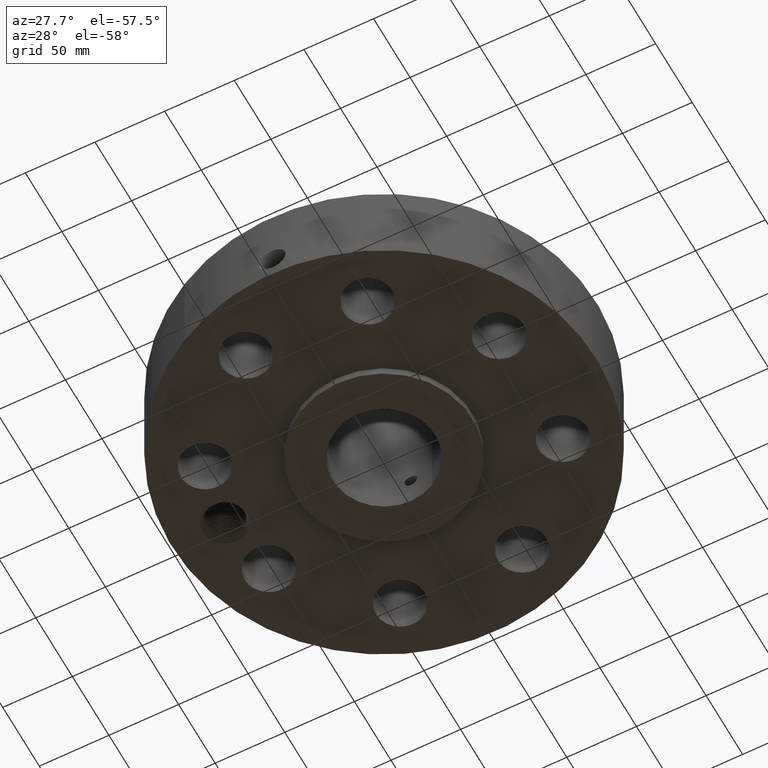
[diagram: clean part render]
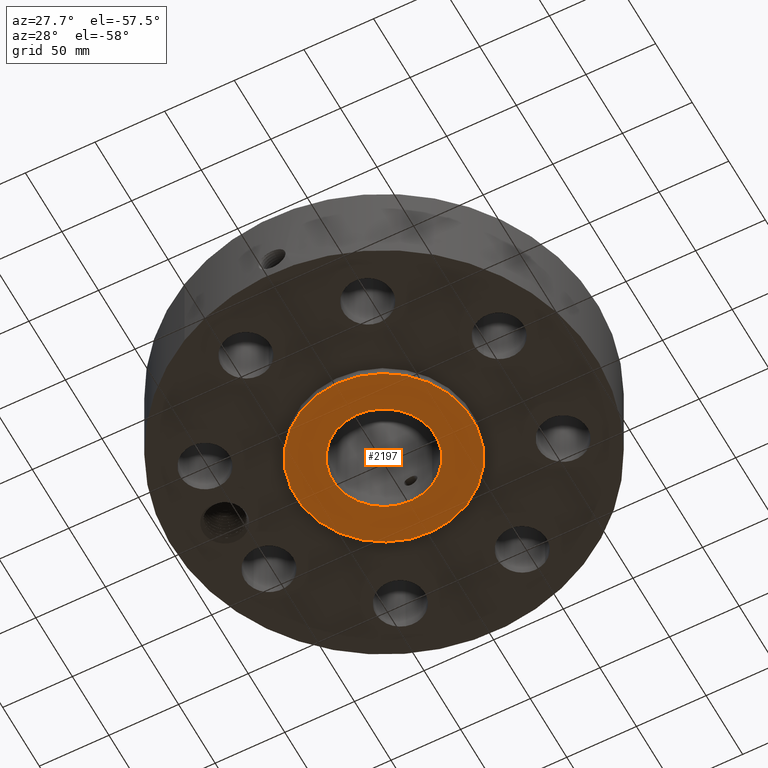
[diagram: same view with one face highlighted and labeled with its STEP entity id]
A machine part, auxiliary view. The second image highlights one B-rep face of the part: STEP entity #2197.
In plain terms, the highlighted planar face has unit normal (0, 0, -1).
Its self-contained STEP definition (entity closure, byte-faithful):
#1156=AXIS2_PLACEMENT_3D('Circle Axis2P3D',#1154,#1155,$) ;
#1182=AXIS2_PLACEMENT_3D('Circle Axis2P3D',#1180,#1181,$) ;
#2173=AXIS2_PLACEMENT_3D('Plane Axis2P3D',#2170,#2171,#2172) ;
#2181=AXIS2_PLACEMENT_3D('Circle Axis2P3D',#2179,#2180,$) ;
#2190=AXIS2_PLACEMENT_3D('Circle Axis2P3D',#2188,#2189,$) ;
#1154=CARTESIAN_POINT('Axis2P3D Location',(0.,0.,0.)) ;
#1158=CARTESIAN_POINT('Vertex',(1.19856384652,2.19395640473,0.)) ;
#1160=CARTESIAN_POINT('Vertex',(-1.19856384652,-2.19395640473,0.)) ;
#1180=CARTESIAN_POINT('Axis2P3D Location',(0.,0.,0.)) ;
#2170=CARTESIAN_POINT('Axis2P3D Location',(0.,1.45000000001,0.)) ;
#2179=CARTESIAN_POINT('Axis2P3D Location',(0.,0.,0.)) ;
#2183=CARTESIAN_POINT('Vertex',(0.695167030979,1.27249471475,-5.59482469102E-015)) ;
#2185=CARTESIAN_POINT('Vertex',(-0.695167030979,-1.27249471475,-5.59482469102E-015)) ;
#2188=CARTESIAN_POINT('Axis2P3D Location',(0.,0.,0.)) ;
#1155=DIRECTION('Axis2P3D Direction',(0.,0.,-0.0393700787402)) ;
#1181=DIRECTION('Axis2P3D Direction',(0.,0.,-0.0393700787402)) ;
#2171=DIRECTION('Axis2P3D Direction',(0.,0.,-0.0393700787402)) ;
#2172=DIRECTION('Axis2P3D XDirection',(0.0393700787402,0.,0.)) ;
#2180=DIRECTION('Axis2P3D Direction',(0.,0.,-0.0393700787402)) ;
#2189=DIRECTION('Axis2P3D Direction',(0.,0.,-0.0393700787402)) ;
#2176=ORIENTED_EDGE('',*,*,#1184,.T.) ;
#2177=ORIENTED_EDGE('',*,*,#1162,.T.) ;
#2194=ORIENTED_EDGE('',*,*,#2187,.F.) ;
#2195=ORIENTED_EDGE('',*,*,#2192,.F.) ;
#2196=FACE_BOUND('',#2193,.T.) ;
#2197=ADVANCED_FACE('PartBody',(#2178,#2196),#2174,.T.) ;
#1157=CIRCLE('generated circle',#1156,2.50000000001) ;
#1183=CIRCLE('generated circle',#1182,2.50000000001) ;
#2182=CIRCLE('generated circle',#2181,1.45000000001) ;
#2191=CIRCLE('generated circle',#2190,1.45000000001) ;
#1162=EDGE_CURVE('',#1159,#1161,#1157,.T.) ;
#1184=EDGE_CURVE('',#1161,#1159,#1183,.T.) ;
#2187=EDGE_CURVE('',#2184,#2186,#2182,.T.) ;
#2192=EDGE_CURVE('',#2186,#2184,#2191,.T.) ;
#2175=EDGE_LOOP('',(#2176,#2177)) ;
#2193=EDGE_LOOP('',(#2194,#2195)) ;
#2178=FACE_OUTER_BOUND('',#2175,.T.) ;
#2174=PLANE('',#2173) ;
#1159=VERTEX_POINT('',#1158) ;
#1161=VERTEX_POINT('',#1160) ;
#2184=VERTEX_POINT('',#2183) ;
#2186=VERTEX_POINT('',#2185) ;